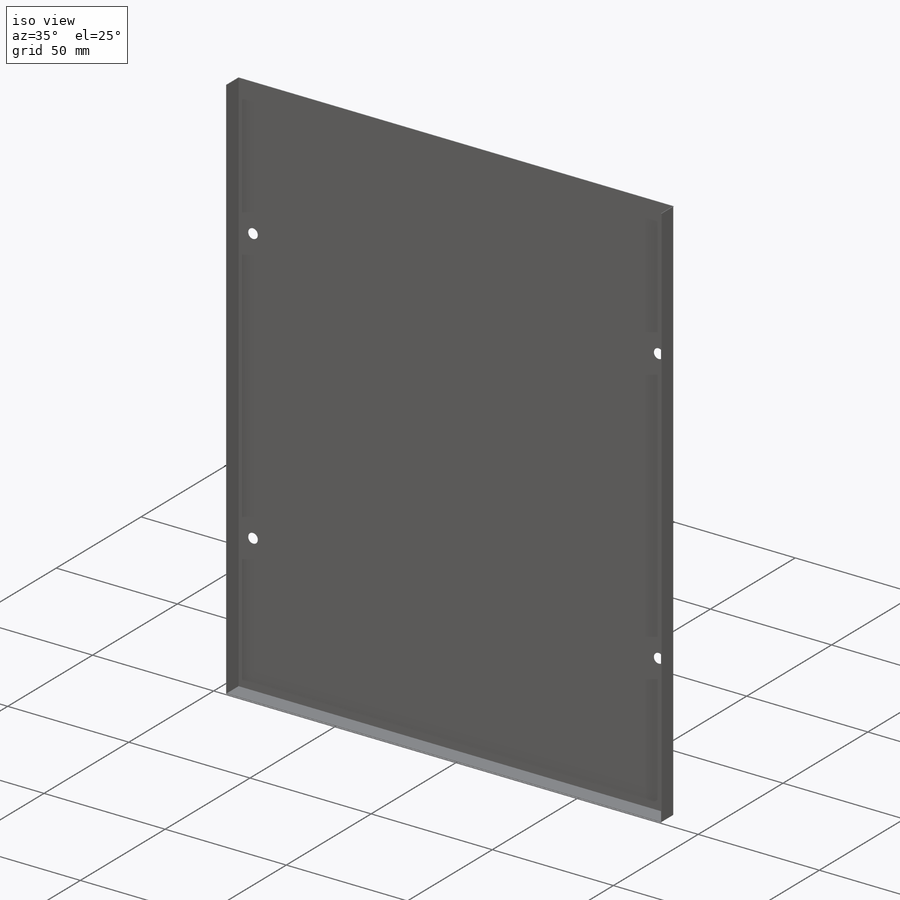
[diagram: iso view]
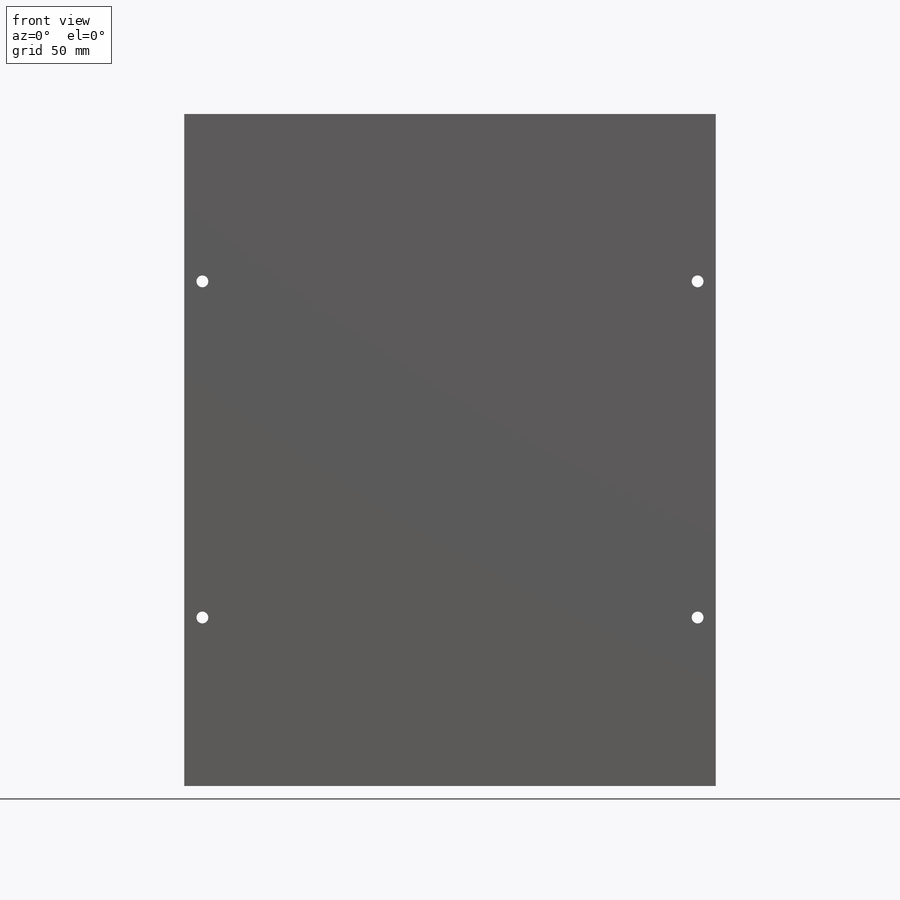
[diagram: front view]
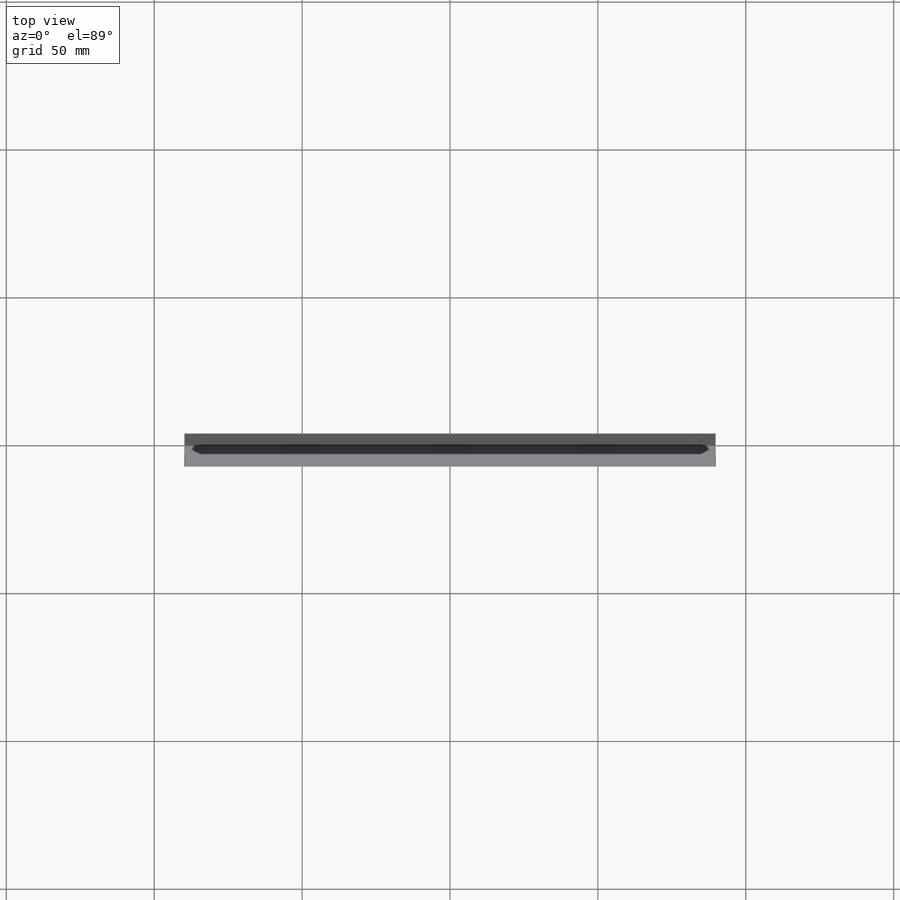
[diagram: top view]
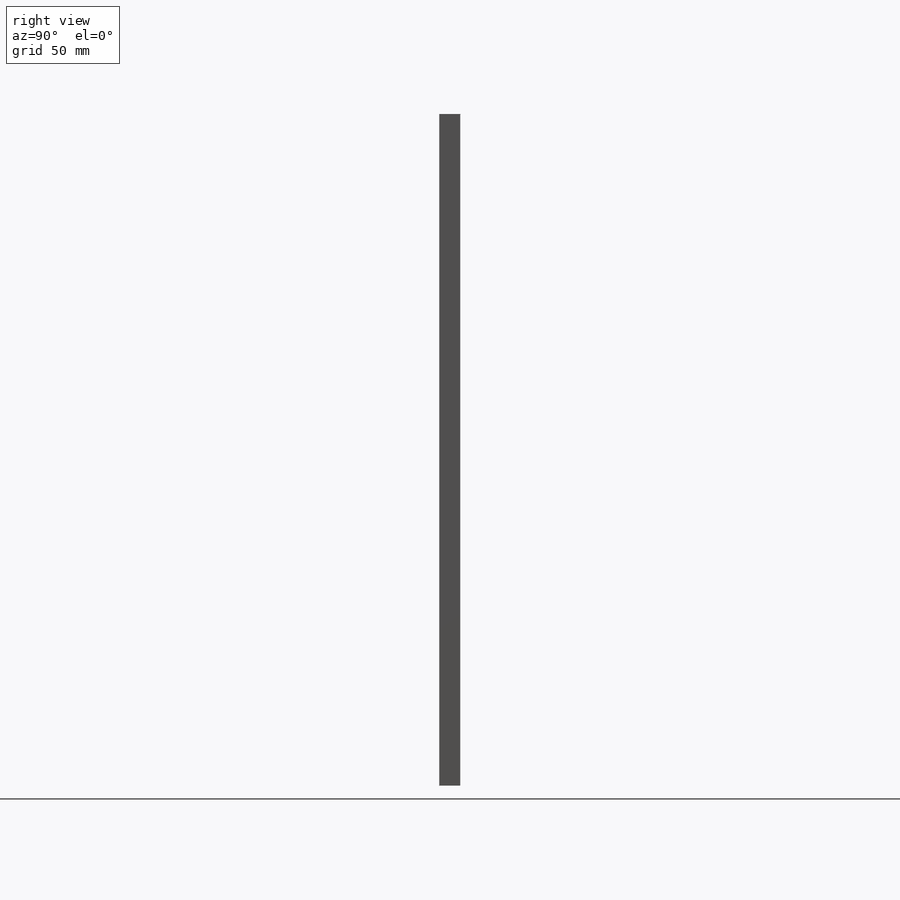
[diagram: right view]
SOLIDWORKS PART (.sldprt)
format: sldprt  version: not decoded by parser v0  size: 229,888 bytes
history: native  units: mm
features: sketch x4, extrude x4, material x1, mirror x1 (+13 scaffold rows collapsed)
feature tree (23):
  scaffold x13  (default folders/planes/origin — collapsed)
  material  "Kapton Film"
  sketch  "Sketch1"  dims[c1.D3=4.0mm c1.D4=4.0mm c1.D1=179.3028mm c1.D2=226.9314mm c1.D5=~5.931437mm c1.D6=~161.653192mm c2.D6=90.0deg c3.D6=~56.757587mm c3.D7=~170.409979mm]
  extrude  "Heat Exchanger"  Depth=0.0686mm
  sketch  "Sketch3"  dims[c1.D1=0.0686mm c1.D2=0.0mm c2.D1=0.0686mm]
  extrude  "Convection Fins"  Depth=7.0524mm
  sketch  "Sketch5"  dims[D1=0.221mm]
  extrude  "Top Overwrap"  Depth=0.0686mm
  sketch  "Sketch7"  dims[D2=12.0mm D1=0.221mm]
  extrude  "Side Overwrap"  Depth=0.0686mm
  mirror  "Mirror1"
decode coverage: 8 of 9 modeling features carry decoded parameters
note: ~ marks probable driven/reference dimensions
note: suppression state not decoded; provenance and decode notes live in map.json
